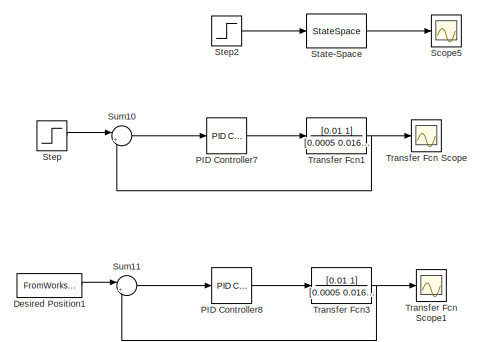
[diagram: root canvas - part 1/9, top left region]
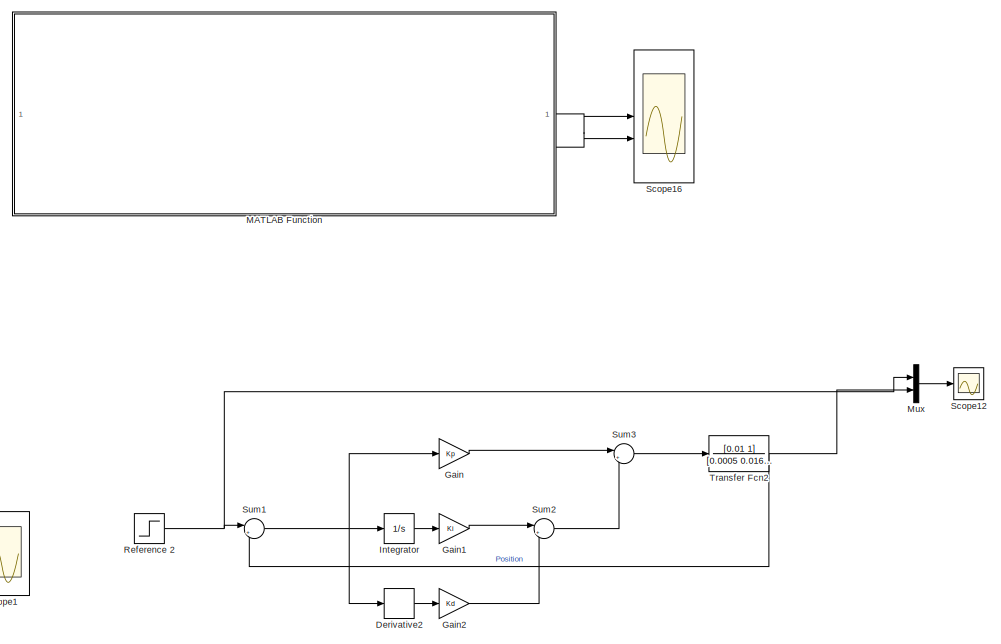
[diagram: root canvas - part 2/9, top right region]
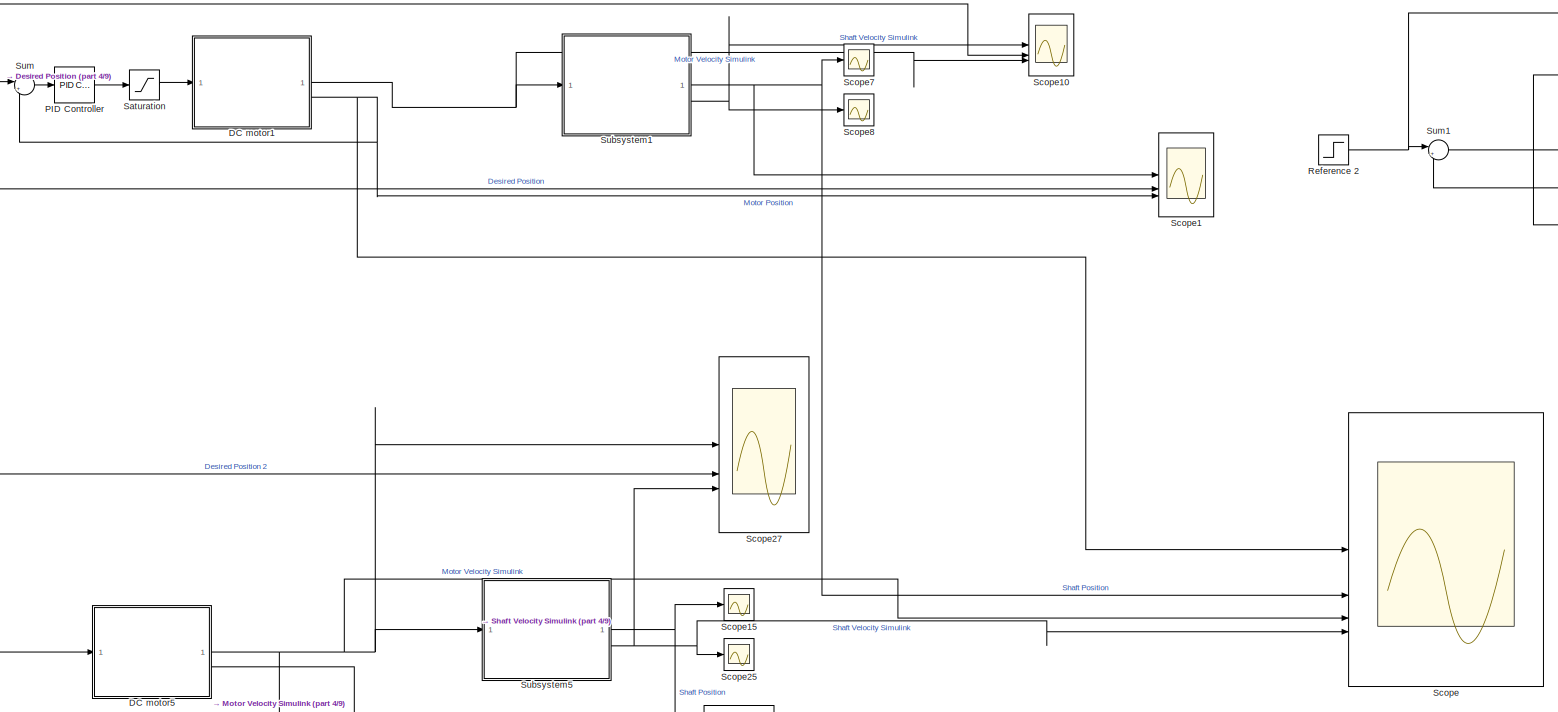
[diagram: root canvas - part 3/9, top center region]
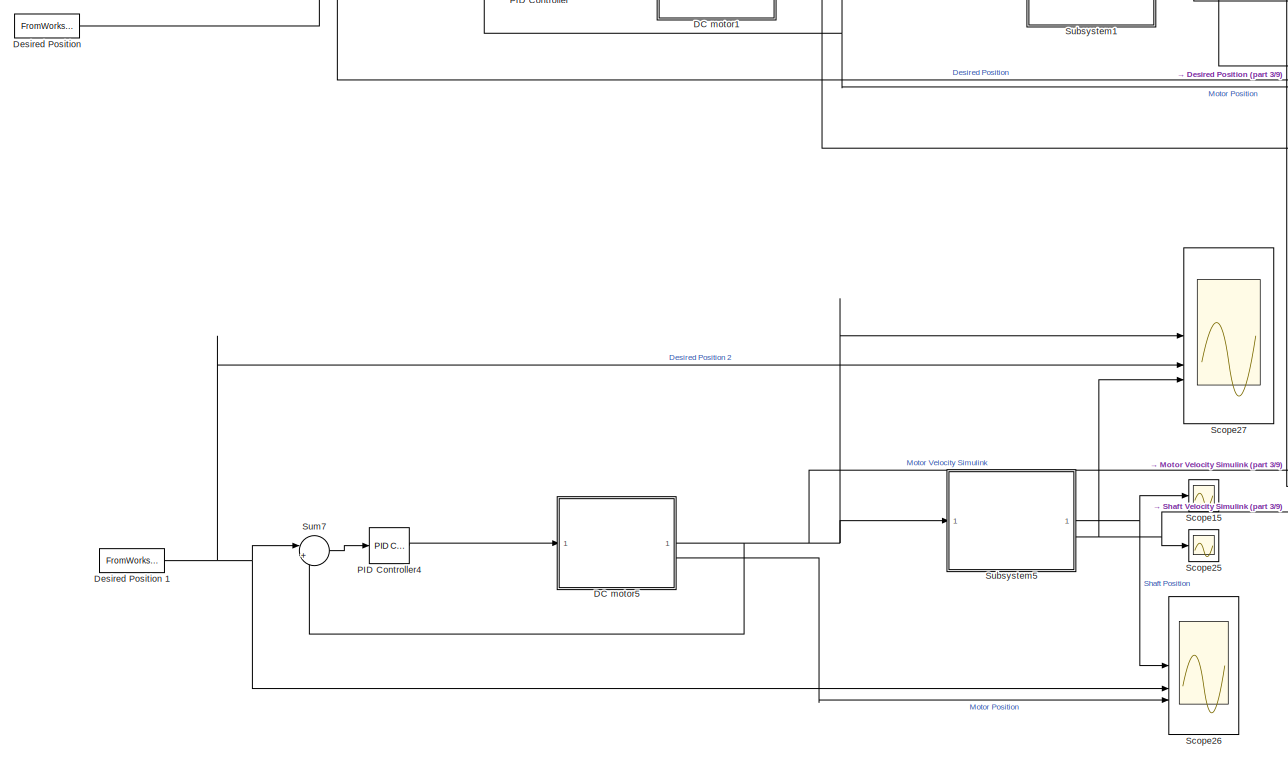
[diagram: root canvas - part 4/9, top left region]
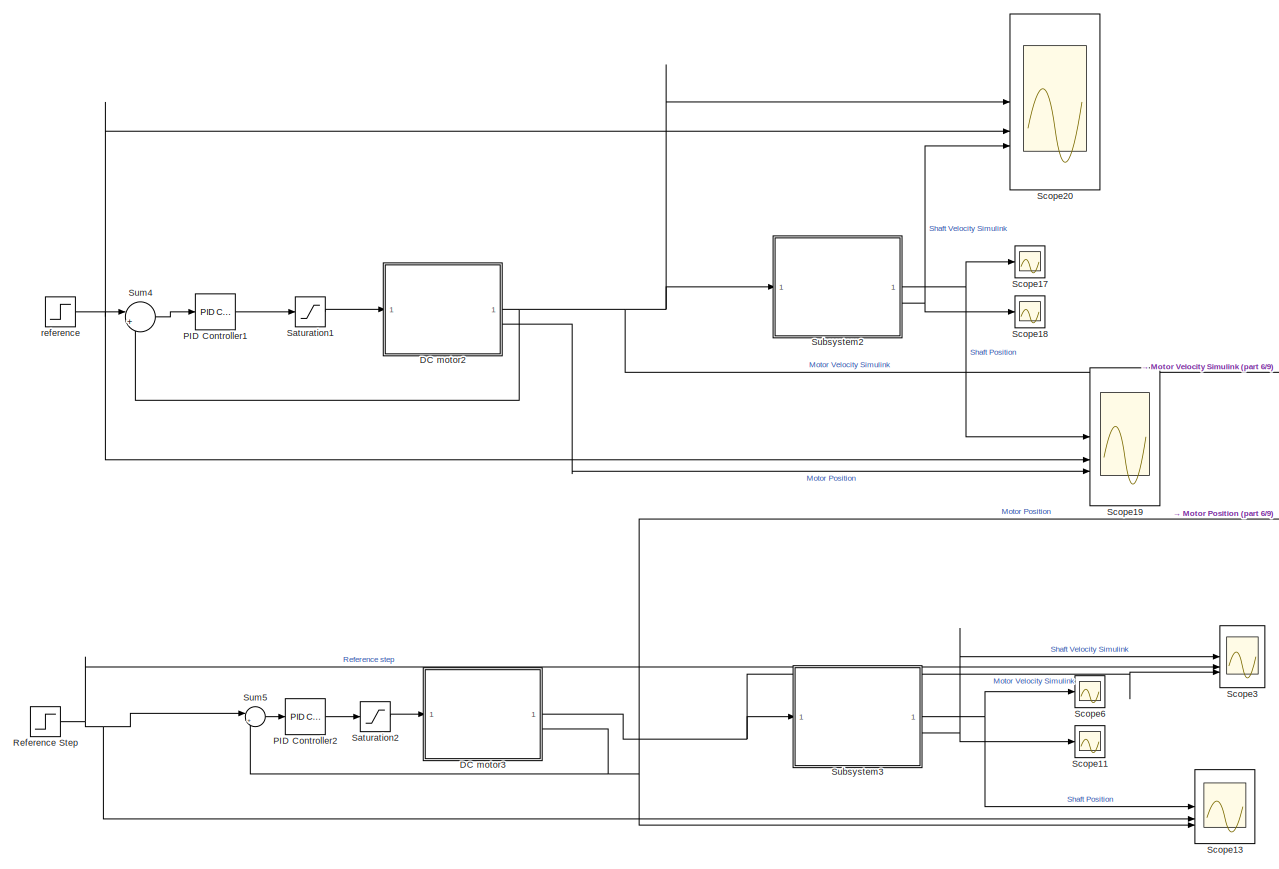
[diagram: root canvas - part 5/9, middle left region]
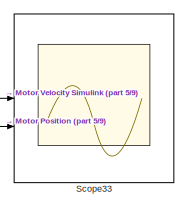
[diagram: root canvas - part 6/9, middle right region]
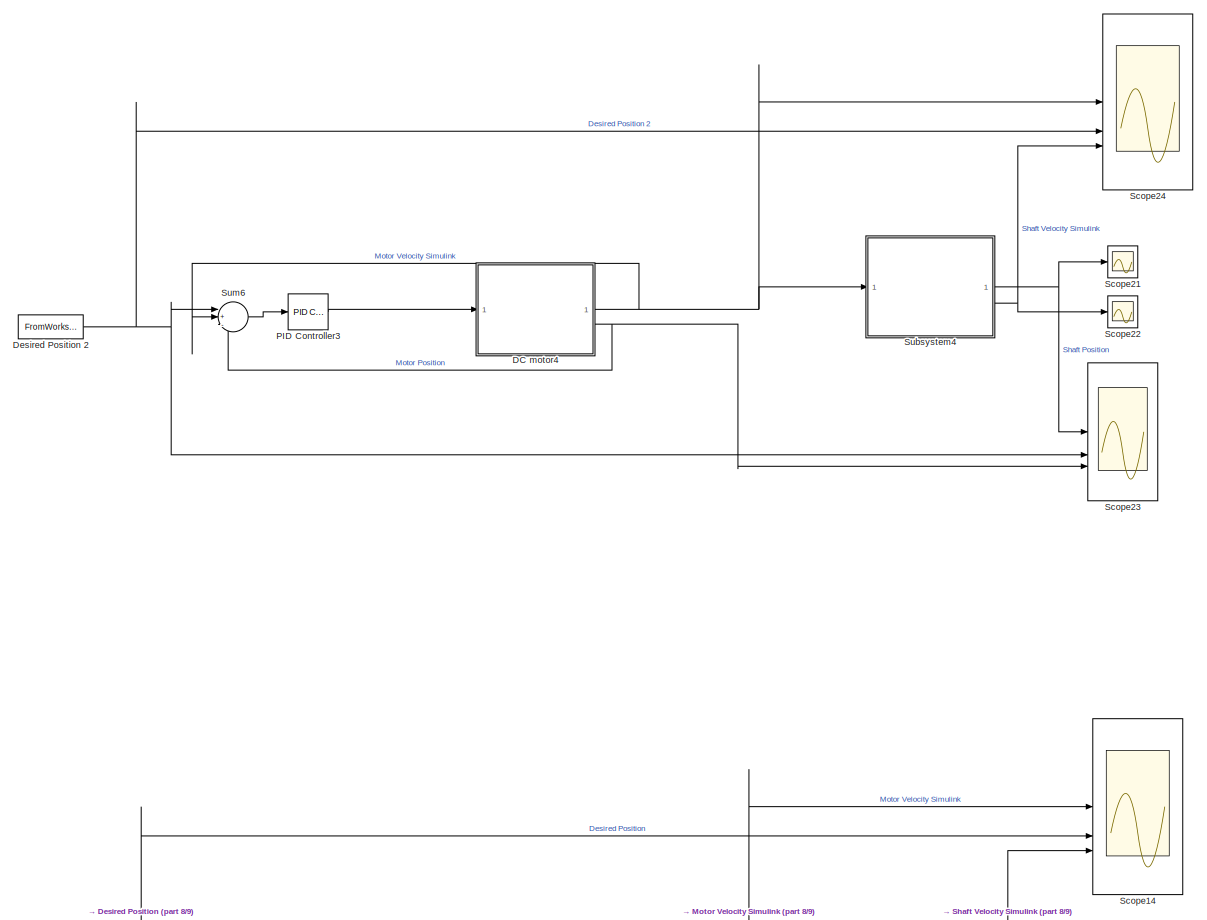
[diagram: root canvas - part 7/9, bottom left region]
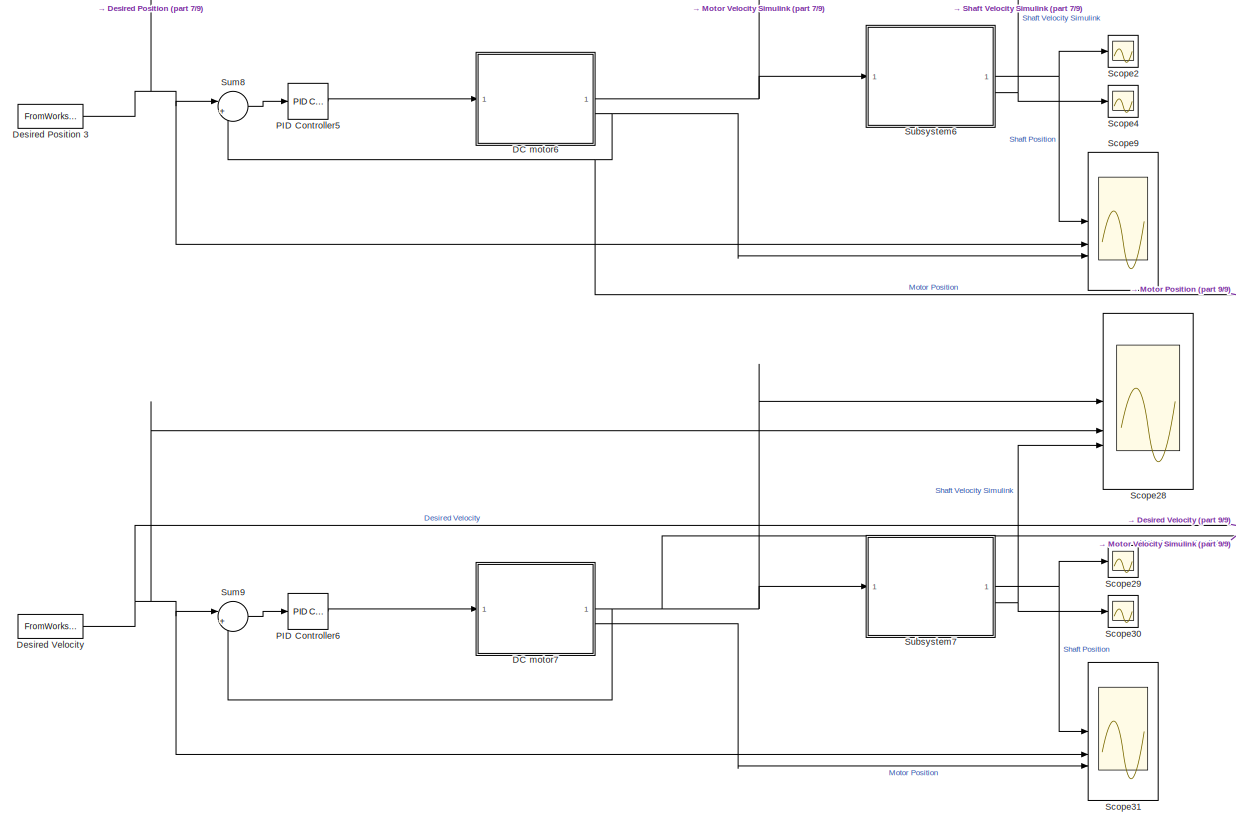
[diagram: root canvas - part 8/9, bottom left region]
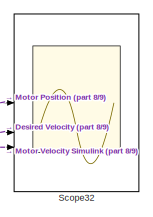
[diagram: root canvas - part 9/9, bottom center region]
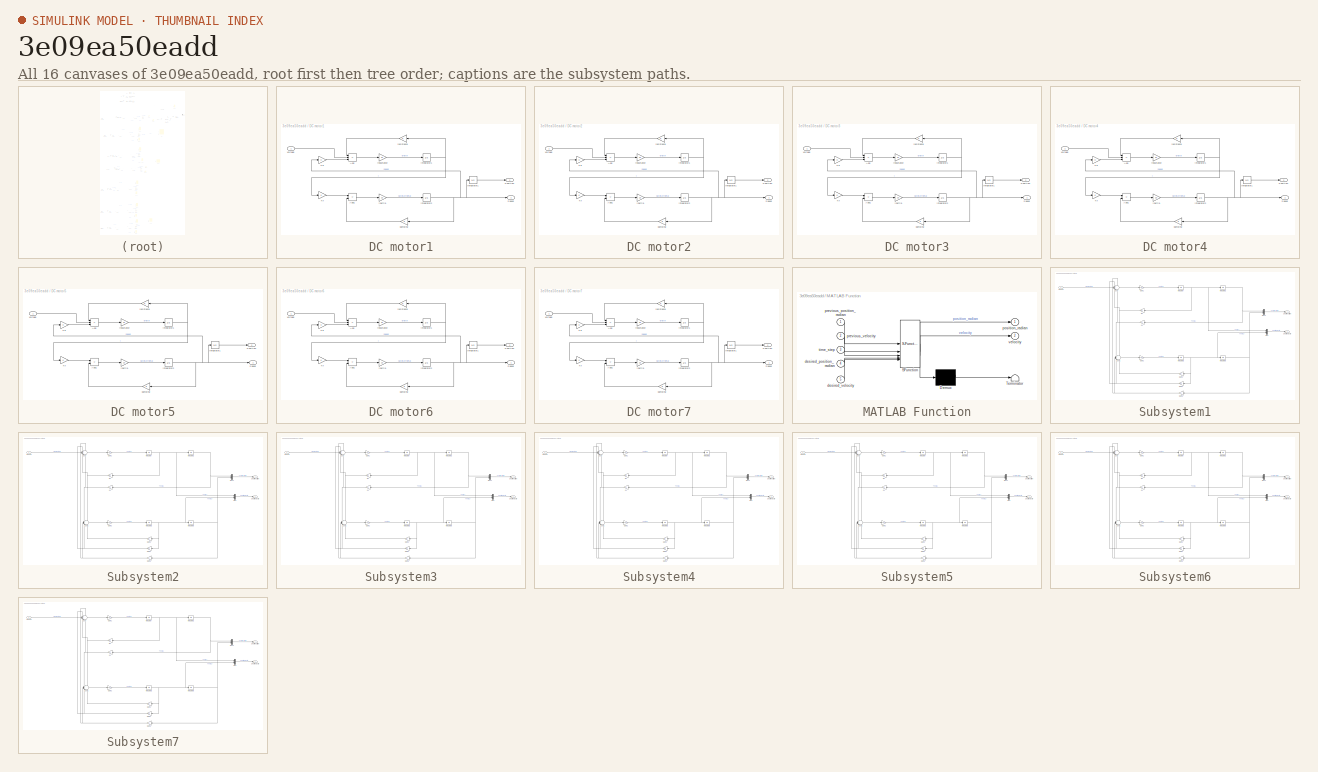
[diagram: thumbnail index - all 16 canvases of the model, root first then tree order]
MODEL slx_3e09ea50eadd
KIND model
CONFIG AbsTol = auto
CONFIG EnableMultiTasking = off
CONFIG FixedStep = auto
CONFIG MaxStep = 1e-2
CONFIG MinStep = auto
CONFIG RelTol = 1e-3
CONFIG SampleTimeConstraint = Unconstrained
CONFIG SolverName = daessc
CONFIG StartTime = 0.0
CONFIG StopTime = 100
BLOCK [SubSystem] DC motor1
BLOCK [Sum] DC motor1/Add
  IconShape = rectangular
  Inputs = -+-
BLOCK [Sum] DC motor1/Add1
  IconShape = rectangular
  Inputs = +-
BLOCK [Integrator] DC motor1/Integrator1
BLOCK [Gain] DC motor1/Ke
  Gain = K
BLOCK [Gain] DC motor1/Kt
  Gain = K
BLOCK [Outport] DC motor1/Position
  Port = 2
BLOCK [Outport] DC motor1/Speed
BLOCK [Gain] DC motor1/damping
  Gain = b
BLOCK [Gain] DC motor1/inductance 
  Gain = 1/L
BLOCK [Gain] DC motor1/inertia
  Gain = 1/J
BLOCK [Integrator] DC motor1/integrator1
BLOCK [Integrator] DC motor1/integrator2
BLOCK [Gain] DC motor1/resistance
  Gain = R
BLOCK [Inport] DC motor1/voltage
BLOCK [SubSystem] DC motor2
BLOCK [Sum] DC motor2/Add
  IconShape = rectangular
  Inputs = -+-
BLOCK [Sum] DC motor2/Add1
  IconShape = rectangular
  Inputs = +-
BLOCK [Integrator] DC motor2/Integrator1
BLOCK [Gain] DC motor2/Ke
  Gain = K
BLOCK [Gain] DC motor2/Kt
  Gain = K
BLOCK [Outport] DC motor2/Position
  Port = 2
BLOCK [Outport] DC motor2/Speed
BLOCK [Gain] DC motor2/damping
  Gain = b
BLOCK [Gain] DC motor2/inductance 
  Gain = 1/L
BLOCK [Gain] DC motor2/inertia
  Gain = 1/J
BLOCK [Integrator] DC motor2/integrator1
BLOCK [Integrator] DC motor2/integrator2
BLOCK [Gain] DC motor2/resistance
  Gain = R
BLOCK [Inport] DC motor2/voltage
BLOCK [SubSystem] DC motor3
BLOCK [Sum] DC motor3/Add
  IconShape = rectangular
  Inputs = -+-
BLOCK [Sum] DC motor3/Add1
  IconShape = rectangular
  Inputs = +-
BLOCK [Integrator] DC motor3/Integrator1
BLOCK [Gain] DC motor3/Ke
  Gain = K
BLOCK [Gain] DC motor3/Kt
  Gain = K
BLOCK [Outport] DC motor3/Position
  Port = 2
BLOCK [Outport] DC motor3/Speed
BLOCK [Gain] DC motor3/damping
  Gain = b
BLOCK [Gain] DC motor3/inductance 
  Gain = 1/L
BLOCK [Gain] DC motor3/inertia
  Gain = 1/J
BLOCK [Integrator] DC motor3/integrator1
BLOCK [Integrator] DC motor3/integrator2
BLOCK [Gain] DC motor3/resistance
  Gain = R
BLOCK [Inport] DC motor3/voltage
BLOCK [SubSystem] DC motor4
BLOCK [Sum] DC motor4/Add
  IconShape = rectangular
  Inputs = -+-
BLOCK [Sum] DC motor4/Add1
  IconShape = rectangular
  Inputs = +-
BLOCK [Integrator] DC motor4/Integrator1
BLOCK [Gain] DC motor4/Ke
  Gain = K
BLOCK [Gain] DC motor4/Kt
  Gain = K
BLOCK [Outport] DC motor4/Position
  Port = 2
BLOCK [Outport] DC motor4/Speed
BLOCK [Gain] DC motor4/damping
  Gain = b
BLOCK [Gain] DC motor4/inductance 
  Gain = 1/L
BLOCK [Gain] DC motor4/inertia
  Gain = 1/J
BLOCK [Integrator] DC motor4/integrator1
BLOCK [Integrator] DC motor4/integrator2
BLOCK [Gain] DC motor4/resistance
  Gain = R
BLOCK [Inport] DC motor4/voltage
BLOCK [SubSystem] DC motor5
BLOCK [Sum] DC motor5/Add
  IconShape = rectangular
  Inputs = -+-
BLOCK [Sum] DC motor5/Add1
  IconShape = rectangular
  Inputs = +-
BLOCK [Integrator] DC motor5/Integrator1
BLOCK [Gain] DC motor5/Ke
  Gain = K
BLOCK [Gain] DC motor5/Kt
  Gain = K
BLOCK [Outport] DC motor5/Position
  Port = 2
BLOCK [Outport] DC motor5/Speed
BLOCK [Gain] DC motor5/damping
  Gain = b
BLOCK [Gain] DC motor5/inductance 
  Gain = 1/L
BLOCK [Gain] DC motor5/inertia
  Gain = 1/J
BLOCK [Integrator] DC motor5/integrator1
BLOCK [Integrator] DC motor5/integrator2
BLOCK [Gain] DC motor5/resistance
  Gain = R
BLOCK [Inport] DC motor5/voltage
BLOCK [SubSystem] DC motor6
BLOCK [Sum] DC motor6/Add
  IconShape = rectangular
  Inputs = -+-
BLOCK [Sum] DC motor6/Add1
  IconShape = rectangular
  Inputs = +-
BLOCK [Integrator] DC motor6/Integrator1
BLOCK [Gain] DC motor6/Ke
  Gain = K
BLOCK [Gain] DC motor6/Kt
  Gain = K
BLOCK [Outport] DC motor6/Position
  Port = 2
BLOCK [Outport] DC motor6/Speed
BLOCK [Gain] DC motor6/damping
  Gain = b
BLOCK [Gain] DC motor6/inductance 
  Gain = 1/L
BLOCK [Gain] DC motor6/inertia
  Gain = 1/J
BLOCK [Integrator] DC motor6/integrator1
BLOCK [Integrator] DC motor6/integrator2
BLOCK [Gain] DC motor6/resistance
  Gain = R
BLOCK [Inport] DC motor6/voltage
BLOCK [SubSystem] DC motor7
BLOCK [Sum] DC motor7/Add
  IconShape = rectangular
  Inputs = -+-
BLOCK [Sum] DC motor7/Add1
  IconShape = rectangular
  Inputs = +-
BLOCK [Integrator] DC motor7/Integrator1
BLOCK [Gain] DC motor7/Ke
  Gain = K
BLOCK [Gain] DC motor7/Kt
  Gain = K
BLOCK [Outport] DC motor7/Position
  Port = 2
BLOCK [Outport] DC motor7/Speed
BLOCK [Gain] DC motor7/damping
  Gain = b
BLOCK [Gain] DC motor7/inductance 
  Gain = 1/L
BLOCK [Gain] DC motor7/inertia
  Gain = 1/J
BLOCK [Integrator] DC motor7/integrator1
BLOCK [Integrator] DC motor7/integrator2
BLOCK [Gain] DC motor7/resistance
  Gain = R
BLOCK [Inport] DC motor7/voltage
BLOCK [Derivative] Derivative2
BLOCK [FromWorkspace] Desired Position
  VariableName = position_time_matrix
BLOCK [FromWorkspace] Desired Position 1
  VariableName = position_time_matrix
BLOCK [FromWorkspace] Desired Position 2
  VariableName = position_time_matrix
BLOCK [FromWorkspace] Desired Position 3
  VariableName = position_time_matrix
BLOCK [FromWorkspace] Desired Position1
  VariableName = position_time_matrix
BLOCK [FromWorkspace] Desired Velocity
  VariableName = position_time_matrix
BLOCK [Gain] Gain
  Gain = Kp
BLOCK [Gain] Gain1
  Gain = Ki
BLOCK [Gain] Gain2
  Gain = Kd
BLOCK [Integrator] Integrator
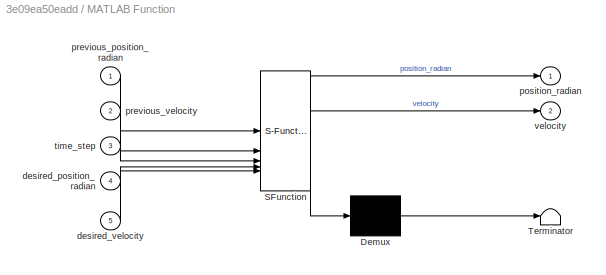
BLOCK [SubSystem] MATLAB Function
  Commented = on
  ErrorFcn = Stateflow.Translate.translate
  LibrarySourceBlock = simulink/User-Defined\nFunctions/MATLAB Function
  PermitHierarchicalResolution = ExplicitOnly
  SFBlockType = MATLAB Function
  TreatAsAtomicUnit = on
BLOCK [Demux] MATLAB Function/ Demux 
  Outputs = 1
BLOCK [S-Function] MATLAB Function/ SFunction 
  EnableBusSupport = on
  FunctionName = sf_sfun
  PortCounts = [5 3]
  SFcnIsStateOwnerBlock = off
  SFunctionDeploymentMode = off
  Tag = Stateflow S-Function 2
BLOCK [Terminator] MATLAB Function/ Terminator 
BLOCK [Inport] MATLAB Function/desired_position_radian
  Port = 4
BLOCK [Inport] MATLAB Function/desired_velocity
  Port = 5
BLOCK [Outport] MATLAB Function/position_radian
BLOCK [Inport] MATLAB Function/previous_position_radian
BLOCK [Inport] MATLAB Function/previous_velocity
  Port = 2
BLOCK [Inport] MATLAB Function/time_step
  Port = 3
BLOCK [Outport] MATLAB Function/velocity
  Port = 2
BLOCK [Mux] Mux
  DisplayOption = bar
  Inputs = 2
BLOCK [Reference] PID Controller  REF=slpidlib/PID Controller
  LibrarySourceBlock = simulink/Continuous/PID Controller
  SourceBlock = slpidlib/PID Controller
  SourceType = PID 1dof
BLOCK [Reference] PID Controller1  REF=slpidlib/PID Controller
  LibrarySourceBlock = simulink/Continuous/PID Controller
  SourceBlock = slpidlib/PID Controller
  SourceType = PID 1dof
BLOCK [Reference] PID Controller2  REF=slpidlib/PID Controller
  LibrarySourceBlock = simulink/Continuous/PID Controller
  SourceBlock = slpidlib/PID Controller
  SourceType = PID 1dof
BLOCK [Reference] PID Controller3  REF=slpidlib/PID Controller
  LibrarySourceBlock = simulink/Continuous/PID Controller
  SourceBlock = slpidlib/PID Controller
  SourceType = PID 1dof
BLOCK [Reference] PID Controller4  REF=slpidlib/PID Controller
  LibrarySourceBlock = simulink/Continuous/PID Controller
  SourceBlock = slpidlib/PID Controller
  SourceType = PID 1dof
BLOCK [Reference] PID Controller5  REF=slpidlib/PID Controller
  LibrarySourceBlock = simulink/Continuous/PID Controller
  SourceBlock = slpidlib/PID Controller
  SourceType = PID 1dof
BLOCK [Reference] PID Controller6  REF=slpidlib/PID Controller
  LibrarySourceBlock = simulink/Continuous/PID Controller
  SourceBlock = slpidlib/PID Controller
  SourceType = PID 1dof
BLOCK [Reference] PID Controller7  REF=slpidlib/PID Controller
  LibrarySourceBlock = simulink/Continuous/PID Controller
  SourceBlock = slpidlib/PID Controller
  SourceType = PID 1dof
BLOCK [Reference] PID Controller8  REF=slpidlib/PID Controller
  LibrarySourceBlock = simulink/Continuous/PID Controller
  SourceBlock = slpidlib/PID Controller
  SourceType = PID 1dof
BLOCK [Step] Reference 2
  SampleTime = 0
BLOCK [Step] Reference Step
  After = 5
  SampleTime = 0
BLOCK [Saturate] Saturation
  LowerLimit = -50
  UpperLimit = 50
BLOCK [Saturate] Saturation1
  LowerLimit = -100000
  UpperLimit = 100000
BLOCK [Saturate] Saturation2
  LowerLimit = -100000
  UpperLimit = 100000
BLOCK [Scope] Scope
  Floating = off
  NumInputPorts = 4
  ScopeSpecificationString = Simulink.scopes.TimeScopeBlockCfg('CurrentConfiguration', extmgr.ConfigurationSet(extmgr.Configuration('Core','General UI',true),extmgr.Configuration('Core','Source UI',true),extmgr.Configuration('Sources','WiredSimulink',true,'DataLoggingVariableName','ScopeData5'),extmgr.Configuration('Visuals','Time Domain',true,'SerializedDisplays',{struct('MinYLimReal','-3.63178','MaxYLimReal','49.80574','YLa...<+1566ch>
BLOCK [Scope] Scope1
  Floating = off
  NumInputPorts = 3
  ScopeSpecificationString = Simulink.scopes.TimeScopeBlockCfg('CurrentConfiguration', extmgr.ConfigurationSet(extmgr.Configuration('Core','General UI',true),extmgr.Configuration('Core','Source UI',true),extmgr.Configuration('Sources','WiredSimulink',true,'DataLoggingVariableName','ScopeData6'),extmgr.Configuration('Visuals','Time Domain',true,'SerializedDisplays',{struct('MinYLimReal','-48.21583','MaxYLimReal','64.14187','YL...<+1464ch>
BLOCK [Scope] Scope10
  Floating = off
  NumInputPorts = 3
  ScopeSpecificationString = Simulink.scopes.TimeScopeBlockCfg('CurrentConfiguration', extmgr.ConfigurationSet(extmgr.Configuration('Core','General UI',true),extmgr.Configuration('Core','Source UI',true),extmgr.Configuration('Sources','WiredSimulink',true,'DataLoggingVariableName','ScopeData1'),extmgr.Configuration('Visuals','Time Domain',true,'SerializedDisplays',{struct('MinYLimReal','-28.73493','MaxYLimReal','58.72698','YL...<+1701ch>
BLOCK [Scope] Scope11
  Floating = off
  NameLocation = top
  NumInputPorts = 1
  ScopeSpecificationString = Simulink.scopes.TimeScopeBlockCfg('CurrentConfiguration', extmgr.ConfigurationSet(extmgr.Configuration('Core','General UI',true),extmgr.Configuration('Core','Source UI',true),extmgr.Configuration('Sources','WiredSimulink',true,'DataLoggingVariableName','ScopeData1'),extmgr.Configuration('Visuals','Time Domain',true,'SerializedDisplays',{struct('MinYLimReal','-0.1869','MaxYLimReal','1.2015','YLabel...<+1454ch>
BLOCK [Scope] Scope12
  Floating = off
  NumInputPorts = 1
  ScopeSpecificationString = Simulink.scopes.TimeScopeBlockCfg('CurrentConfiguration', extmgr.ConfigurationSet(extmgr.Configuration('Core','General UI',true),extmgr.Configuration('Core','Source UI',true),extmgr.Configuration('Sources','WiredSimulink',true,'DataLoggingVariableName','ScopeData3'),extmgr.Configuration('Visuals','Time Domain',true,'SerializedDisplays',{struct('MinYLimReal','-0.125','MaxYLimReal','1.125','YLabelRe...<+1369ch>
BLOCK [Scope] Scope13
  Floating = off
  NumInputPorts = 3
  ScopeSpecificationString = Simulink.scopes.TimeScopeBlockCfg('CurrentConfiguration', extmgr.ConfigurationSet(extmgr.Configuration('Core','General UI',true),extmgr.Configuration('Core','Source UI',true),extmgr.Configuration('Sources','WiredSimulink',true,'DataLoggingVariableName','ScopeData2'),extmgr.Configuration('Visuals','Time Domain',true,'SerializedDisplays',{struct('MinYLimReal','-31.74458','MaxYLimReal','51.3213','YLa...<+1529ch>
BLOCK [Scope] Scope14
  Floating = off
  NumInputPorts = 3
  ScopeSpecificationString = Simulink.scopes.TimeScopeBlockCfg('CurrentConfiguration', extmgr.ConfigurationSet(extmgr.Configuration('Core','General UI',true),extmgr.Configuration('Core','Source UI',true),extmgr.Configuration('Sources','WiredSimulink',true,'DataLoggingVariableName','ScopeData1'),extmgr.Configuration('Visuals','Time Domain',true,'SerializedDisplays',{struct('MinYLimReal','-19.99744','MaxYLimReal','49.99972','YL...<+1508ch>
BLOCK [Scope] Scope15
  Floating = off
  NumInputPorts = 1
  ScopeSpecificationString = Simulink.scopes.TimeScopeBlockCfg('CurrentConfiguration', extmgr.ConfigurationSet(extmgr.Configuration('Core','General UI',true),extmgr.Configuration('Core','Source UI',true),extmgr.Configuration('Sources','WiredSimulink',true,'DataLoggingVariableName','ScopeData1'),extmgr.Configuration('Visuals','Time Domain',true,'SerializedDisplays',{struct('MinYLimReal','-25.58747','MaxYLimReal','54.70781','YL...<+1400ch>
BLOCK [Scope] Scope16
  Floating = off
  NumInputPorts = 2
  ScopeSpecificationString = Simulink.scopes.TimeScopeBlockCfg('CurrentConfiguration', extmgr.ConfigurationSet(extmgr.Configuration('Core','General UI',true),extmgr.Configuration('Core','Source UI',true),extmgr.Configuration('Sources','WiredSimulink',true,'DataLoggingVariableName','ScopeData7'),extmgr.Configuration('Visuals','Time Domain',true,'SerializedDisplays',{struct('MinYLimReal','-0.43916','MaxYLimReal','6.26731','YLab...<+1461ch>
BLOCK [Scope] Scope17
  Floating = off
  NumInputPorts = 1
  ScopeSpecificationString = Simulink.scopes.TimeScopeBlockCfg('CurrentConfiguration', extmgr.ConfigurationSet(extmgr.Configuration('Core','General UI',true),extmgr.Configuration('Core','Source UI',true),extmgr.Configuration('Sources','WiredSimulink',true,'DataLoggingVariableName','ScopeData8'),extmgr.Configuration('Visuals','Time Domain',true,'SerializedDisplays',{struct('MinYLimReal','-0.20456','MaxYLimReal','1.841','YLabel...<+1386ch>
BLOCK [Scope] Scope18
  Floating = off
  NameLocation = top
  NumInputPorts = 1
  ScopeSpecificationString = Simulink.scopes.TimeScopeBlockCfg('CurrentConfiguration', extmgr.ConfigurationSet(extmgr.Configuration('Core','General UI',true),extmgr.Configuration('Core','Source UI',true),extmgr.Configuration('Sources','WiredSimulink',true,'DataLoggingVariableName','ScopeData9'),extmgr.Configuration('Visuals','Time Domain',true,'SerializedDisplays',{struct('MinYLimReal','-0.1869','MaxYLimReal','1.2015','YLabel...<+1454ch>
BLOCK [Scope] Scope19
  Floating = off
  NumInputPorts = 3
  ScopeSpecificationString = Simulink.scopes.TimeScopeBlockCfg('CurrentConfiguration', extmgr.ConfigurationSet(extmgr.Configuration('Core','General UI',true),extmgr.Configuration('Core','Source UI',true),extmgr.Configuration('Sources','WiredSimulink',true,'DataLoggingVariableName','ScopeData10'),extmgr.Configuration('Visuals','Time Domain',true,'SerializedDisplays',{struct('MinYLimReal','-3.73688','MaxYLimReal','9.93543','YLa...<+1469ch>
BLOCK [Scope] Scope2
  Floating = off
  NumInputPorts = 1
  ScopeSpecificationString = Simulink.scopes.TimeScopeBlockCfg('CurrentConfiguration', extmgr.ConfigurationSet(extmgr.Configuration('Core','General UI',true),extmgr.Configuration('Core','Source UI',true),extmgr.Configuration('Sources','WiredSimulink',true,'DataLoggingVariableName','ScopeData2'),extmgr.Configuration('Visuals','Time Domain',true,'SerializedDisplays',{struct('MinYLimReal','-25.58747','MaxYLimReal','54.70781','YL...<+1400ch>
BLOCK [Scope] Scope20
  Floating = off
  NumInputPorts = 3
  ScopeSpecificationString = Simulink.scopes.TimeScopeBlockCfg('CurrentConfiguration', extmgr.ConfigurationSet(extmgr.Configuration('Core','General UI',true),extmgr.Configuration('Core','Source UI',true),extmgr.Configuration('Sources','WiredSimulink',true,'DataLoggingVariableName','ScopeData11'),extmgr.Configuration('Visuals','Time Domain',true,'SerializedDisplays',{struct('MinYLimReal','3.13708','MaxYLimReal','5.23054','YLab...<+1517ch>
BLOCK [Scope] Scope21
  Floating = off
  NumInputPorts = 1
  ScopeSpecificationString = Simulink.scopes.TimeScopeBlockCfg('CurrentConfiguration', extmgr.ConfigurationSet(extmgr.Configuration('Core','General UI',true),extmgr.Configuration('Core','Source UI',true),extmgr.Configuration('Sources','WiredSimulink',true,'DataLoggingVariableName','ScopeData8'),extmgr.Configuration('Visuals','Time Domain',true,'SerializedDisplays',{struct('MinYLimReal','-25.58747','MaxYLimReal','54.70781','YL...<+1400ch>
BLOCK [Scope] Scope22
  Floating = off
  NameLocation = top
  NumInputPorts = 1
  ScopeSpecificationString = Simulink.scopes.TimeScopeBlockCfg('CurrentConfiguration', extmgr.ConfigurationSet(extmgr.Configuration('Core','General UI',true),extmgr.Configuration('Core','Source UI',true),extmgr.Configuration('Sources','WiredSimulink',true,'DataLoggingVariableName','ScopeData9'),extmgr.Configuration('Visuals','Time Domain',true,'SerializedDisplays',{struct('MinYLimReal','-0.1869','MaxYLimReal','1.2015','YLabel...<+1454ch>
BLOCK [Scope] Scope23
  Floating = off
  NumInputPorts = 3
  ScopeSpecificationString = Simulink.scopes.TimeScopeBlockCfg('CurrentConfiguration', extmgr.ConfigurationSet(extmgr.Configuration('Core','General UI',true),extmgr.Configuration('Core','Source UI',true),extmgr.Configuration('Sources','WiredSimulink',true,'DataLoggingVariableName','ScopeData10'),extmgr.Configuration('Visuals','Time Domain',true,'SerializedDisplays',{struct('MinYLimReal','-19.99999','MaxYLimReal','50.00000','Y...<+1513ch>
BLOCK [Scope] Scope24
  Floating = off
  NumInputPorts = 3
  ScopeSpecificationString = Simulink.scopes.TimeScopeBlockCfg('CurrentConfiguration', extmgr.ConfigurationSet(extmgr.Configuration('Core','General UI',true),extmgr.Configuration('Core','Source UI',true),extmgr.Configuration('Sources','WiredSimulink',true,'DataLoggingVariableName','ScopeData11'),extmgr.Configuration('Visuals','Time Domain',true,'SerializedDisplays',{struct('MinYLimReal','-19.99744','MaxYLimReal','49.99972','Y...<+1509ch>
BLOCK [Scope] Scope25
  Floating = off
  NameLocation = top
  NumInputPorts = 1
  ScopeSpecificationString = Simulink.scopes.TimeScopeBlockCfg('CurrentConfiguration', extmgr.ConfigurationSet(extmgr.Configuration('Core','General UI',true),extmgr.Configuration('Core','Source UI',true),extmgr.Configuration('Sources','WiredSimulink',true,'DataLoggingVariableName','ScopeData2'),extmgr.Configuration('Visuals','Time Domain',true,'SerializedDisplays',{struct('MinYLimReal','-0.1869','MaxYLimReal','1.2015','YLabel...<+1454ch>
BLOCK [Scope] Scope26
  Floating = off
  NumInputPorts = 3
  ScopeSpecificationString = Simulink.scopes.TimeScopeBlockCfg('CurrentConfiguration', extmgr.ConfigurationSet(extmgr.Configuration('Core','General UI',true),extmgr.Configuration('Core','Source UI',true),extmgr.Configuration('Sources','WiredSimulink',true,'DataLoggingVariableName','ScopeData3'),extmgr.Configuration('Visuals','Time Domain',true,'SerializedDisplays',{struct('MinYLimReal','-19.99999','MaxYLimReal','114.84513','Y...<+1515ch>
BLOCK [Scope] Scope27
  Floating = off
  NumInputPorts = 3
  ScopeSpecificationString = Simulink.scopes.TimeScopeBlockCfg('CurrentConfiguration', extmgr.ConfigurationSet(extmgr.Configuration('Core','General UI',true),extmgr.Configuration('Core','Source UI',true),extmgr.Configuration('Sources','WiredSimulink',true,'DataLoggingVariableName','ScopeData4'),extmgr.Configuration('Visuals','Time Domain',true,'SerializedDisplays',{struct('MinYLimReal','-19.99744','MaxYLimReal','49.99972','YL...<+1534ch>
BLOCK [Scope] Scope28
  Floating = off
  NumInputPorts = 3
  ScopeSpecificationString = Simulink.scopes.TimeScopeBlockCfg('CurrentConfiguration', extmgr.ConfigurationSet(extmgr.Configuration('Core','General UI',true),extmgr.Configuration('Core','Source UI',true),extmgr.Configuration('Sources','WiredSimulink',true,'DataLoggingVariableName','ScopeData5'),extmgr.Configuration('Visuals','Time Domain',true,'SerializedDisplays',{struct('MinYLimReal','-19.99744','MaxYLimReal','49.99972','YL...<+1506ch>
BLOCK [Scope] Scope29
  Floating = off
  NumInputPorts = 1
  ScopeSpecificationString = Simulink.scopes.TimeScopeBlockCfg('CurrentConfiguration', extmgr.ConfigurationSet(extmgr.Configuration('Core','General UI',true),extmgr.Configuration('Core','Source UI',true),extmgr.Configuration('Sources','WiredSimulink',true,'DataLoggingVariableName','ScopeData6'),extmgr.Configuration('Visuals','Time Domain',true,'SerializedDisplays',{struct('MinYLimReal','-25.58747','MaxYLimReal','54.70781','YL...<+1400ch>
BLOCK [Scope] Scope3
  Floating = off
  NumInputPorts = 3
  ScopeSpecificationString = Simulink.scopes.TimeScopeBlockCfg('CurrentConfiguration', extmgr.ConfigurationSet(extmgr.Configuration('Core','General UI',true),extmgr.Configuration('Core','Source UI',true),extmgr.Configuration('Sources','WiredSimulink',true,'DataLoggingVariableName','ScopeData4'),extmgr.Configuration('Visuals','Time Domain',true,'SerializedDisplays',{struct('MinYLimReal','-23.58594','MaxYLimReal','53.28488','YL...<+1724ch>
BLOCK [Scope] Scope30
  Floating = off
  NameLocation = top
  NumInputPorts = 1
  ScopeSpecificationString = Simulink.scopes.TimeScopeBlockCfg('CurrentConfiguration', extmgr.ConfigurationSet(extmgr.Configuration('Core','General UI',true),extmgr.Configuration('Core','Source UI',true),extmgr.Configuration('Sources','WiredSimulink',true,'DataLoggingVariableName','ScopeData7'),extmgr.Configuration('Visuals','Time Domain',true,'SerializedDisplays',{struct('MinYLimReal','-0.1869','MaxYLimReal','1.2015','YLabel...<+1454ch>
BLOCK [Scope] Scope31
  Floating = off
  NumInputPorts = 3
  ScopeSpecificationString = Simulink.scopes.TimeScopeBlockCfg('CurrentConfiguration', extmgr.ConfigurationSet(extmgr.Configuration('Core','General UI',true),extmgr.Configuration('Core','Source UI',true),extmgr.Configuration('Sources','WiredSimulink',true,'DataLoggingVariableName','ScopeData8'),extmgr.Configuration('Visuals','Time Domain',true,'SerializedDisplays',{struct('MinYLimReal','-19.99999','MaxYLimReal','50.00000','YL...<+1512ch>
BLOCK [Scope] Scope32
  Floating = off
  NumInputPorts = 3
  ScopeSpecificationString = Simulink.scopes.TimeScopeBlockCfg('CurrentConfiguration', extmgr.ConfigurationSet(extmgr.Configuration('Core','General UI',true),extmgr.Configuration('Core','Source UI',true),extmgr.Configuration('Sources','WiredSimulink',true,'DataLoggingVariableName','ScopeData9'),extmgr.Configuration('Visuals','Time Domain',true,'SerializedDisplays',{struct('MinYLimReal','-29.8517','MaxYLimReal','57.16708','YLa...<+1467ch>
BLOCK [Scope] Scope33
  Floating = off
  NumInputPorts = 2
  ScopeSpecificationString = Simulink.scopes.TimeScopeBlockCfg('CurrentConfiguration', extmgr.ConfigurationSet(extmgr.Configuration('Core','General UI',true),extmgr.Configuration('Core','Source UI',true),extmgr.Configuration('Sources','WiredSimulink',true,'DataLoggingVariableName','ScopeData10'),extmgr.Configuration('Visuals','Time Domain',true,'SerializedDisplays',{struct('MinYLimReal','-0.66211','MaxYLimReal','5.959','YLabe...<+1416ch>
BLOCK [Scope] Scope4
  Floating = off
  NameLocation = top
  NumInputPorts = 1
  ScopeSpecificationString = Simulink.scopes.TimeScopeBlockCfg('CurrentConfiguration', extmgr.ConfigurationSet(extmgr.Configuration('Core','General UI',true),extmgr.Configuration('Core','Source UI',true),extmgr.Configuration('Sources','WiredSimulink',true,'DataLoggingVariableName','ScopeData3'),extmgr.Configuration('Visuals','Time Domain',true,'SerializedDisplays',{struct('MinYLimReal','-0.1869','MaxYLimReal','1.2015','YLabel...<+1454ch>
BLOCK [Scope] Scope5
  Floating = off
  NumInputPorts = 1
  ScopeSpecificationString = Simulink.scopes.TimeScopeBlockCfg('CurrentConfiguration', extmgr.ConfigurationSet(extmgr.Configuration('Core','General UI',true),extmgr.Configuration('Core','Source UI',true),extmgr.Configuration('Sources','WiredSimulink',true,'DataLoggingVariableName','ScopeData17'),extmgr.Configuration('Visuals','Time Domain',true,'SerializedDisplays',{struct('MinYLimReal','0.05272','MaxYLimReal','19.95422','YLa...<+1444ch>
BLOCK [Scope] Scope6
  Floating = off
  NumInputPorts = 1
  ScopeSpecificationString = Simulink.scopes.TimeScopeBlockCfg('CurrentConfiguration', extmgr.ConfigurationSet(extmgr.Configuration('Core','General UI',true),extmgr.Configuration('Core','Source UI',true),extmgr.Configuration('Sources','WiredSimulink',true,'DataLoggingVariableName','ScopeData6'),extmgr.Configuration('Visuals','Time Domain',true,'SerializedDisplays',{struct('MinYLimReal','-0.20456','MaxYLimReal','1.841','YLabel...<+1386ch>
BLOCK [Scope] Scope7
  Floating = off
  NumInputPorts = 1
  ScopeSpecificationString = Simulink.scopes.TimeScopeBlockCfg('CurrentConfiguration', extmgr.ConfigurationSet(extmgr.Configuration('Core','General UI',true),extmgr.Configuration('Core','Source UI',true),extmgr.Configuration('Sources','WiredSimulink',true,'DataLoggingVariableName','ScopeData15'),extmgr.Configuration('Visuals','Time Domain',true,'SerializedDisplays',{struct('MinYLimReal','-0.20456','MaxYLimReal','1.841','YLabe...<+1387ch>
BLOCK [Scope] Scope8
  Floating = off
  NameLocation = top
  NumInputPorts = 1
  ScopeSpecificationString = Simulink.scopes.TimeScopeBlockCfg('CurrentConfiguration', extmgr.ConfigurationSet(extmgr.Configuration('Core','General UI',true),extmgr.Configuration('Core','Source UI',true),extmgr.Configuration('Sources','WiredSimulink',true,'DataLoggingVariableName','ScopeData16'),extmgr.Configuration('Visuals','Time Domain',true,'SerializedDisplays',{struct('MinYLimReal','-0.1869','MaxYLimReal','1.2015','YLabe...<+1455ch>
BLOCK [Scope] Scope9
  Floating = off
  NumInputPorts = 3
  ScopeSpecificationString = Simulink.scopes.TimeScopeBlockCfg('CurrentConfiguration', extmgr.ConfigurationSet(extmgr.Configuration('Core','General UI',true),extmgr.Configuration('Core','Source UI',true),extmgr.Configuration('Sources','WiredSimulink',true,'DataLoggingVariableName','ScopeData4'),extmgr.Configuration('Visuals','Time Domain',true,'SerializedDisplays',{struct('MinYLimReal','-20.77029','MaxYLimReal','50.49277','YL...<+1510ch>
BLOCK [StateSpace] State-Space
  A = [-32 -1260 -12400 -20020 0; 1 0 0 0 0; 0 1 0 0 0; 0 0 1 0 0; 0 0 0 1 0]
  B = [1; 0; 0; 0; 0]
  C = [0 0 0 20 2000]
  D = [0]
  InitialCondition = [0;0;0;0;0]
BLOCK [Step] Step
  After = 5
  SampleTime = 0
BLOCK [Step] Step2
  After = 5
  SampleTime = 0
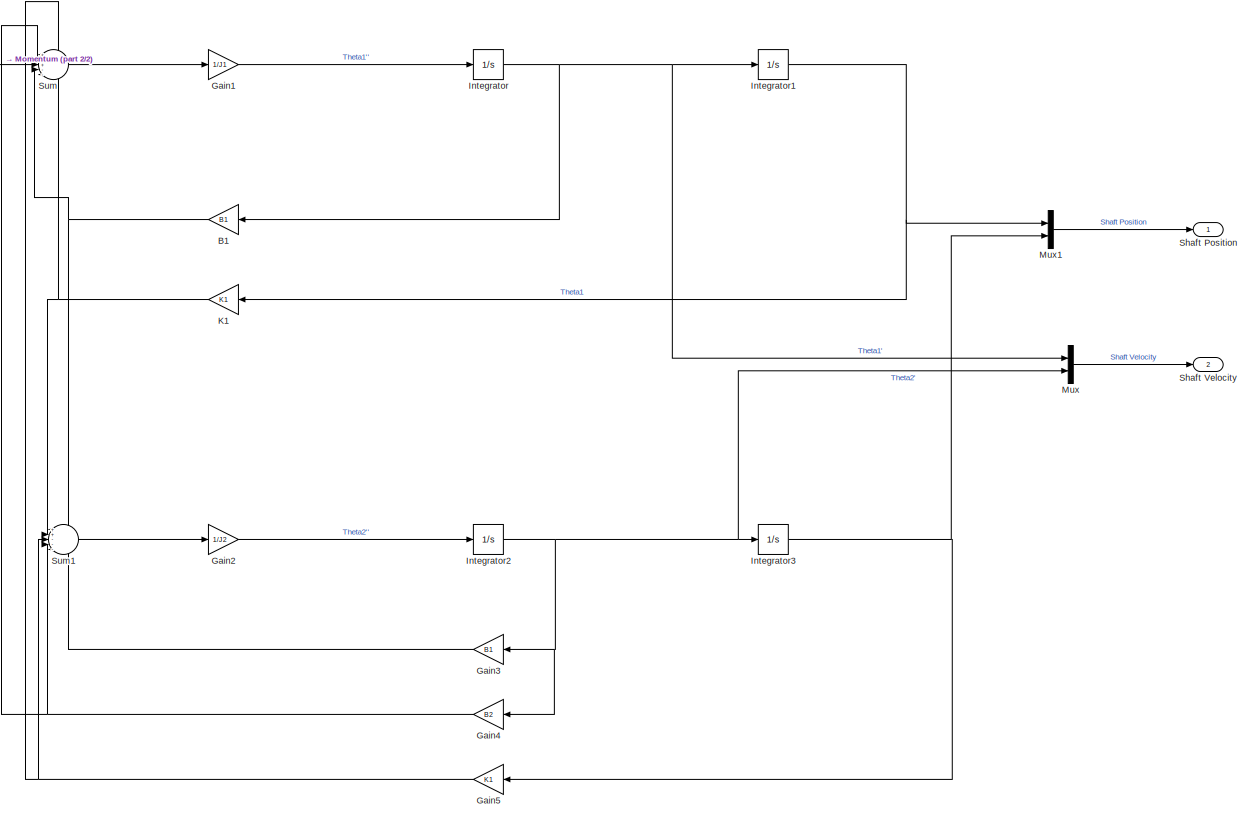
[diagram: Subsystem1 - part 1/2, most of the canvas]
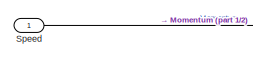
[diagram: Subsystem1 - part 2/2, top left region]
BLOCK [SubSystem] Subsystem1
BLOCK [Gain] Subsystem1/B1
  Gain = B1
BLOCK [Gain] Subsystem1/Gain1
  Gain = 1/J1
BLOCK [Gain] Subsystem1/Gain2
  Gain = 1/J2
BLOCK [Gain] Subsystem1/Gain3
  Gain = B1
BLOCK [Gain] Subsystem1/Gain4
  Gain = B2
BLOCK [Gain] Subsystem1/Gain5
  Gain = K1
BLOCK [Integrator] Subsystem1/Integrator
BLOCK [Integrator] Subsystem1/Integrator1
BLOCK [Integrator] Subsystem1/Integrator2
BLOCK [Integrator] Subsystem1/Integrator3
BLOCK [Gain] Subsystem1/K1
  Gain = K1
BLOCK [Mux] Subsystem1/Mux
  DisplayOption = bar
  Inputs = 2
BLOCK [Mux] Subsystem1/Mux1
  DisplayOption = bar
  Inputs = 2
BLOCK [Outport] Subsystem1/Shaft Position
BLOCK [Outport] Subsystem1/Shaft Velocity
  Port = 2
BLOCK [Inport] Subsystem1/Speed
BLOCK [Sum] Subsystem1/Sum
  Inputs = +++--
BLOCK [Sum] Subsystem1/Sum1
  Inputs = ++---
BLOCK [SubSystem] Subsystem2
BLOCK [Gain] Subsystem2/B1
  Gain = B1
BLOCK [Gain] Subsystem2/Gain1
  Gain = 1/J1
BLOCK [Gain] Subsystem2/Gain2
  Gain = 1/J2
BLOCK [Gain] Subsystem2/Gain3
  Gain = B1
BLOCK [Gain] Subsystem2/Gain4
  Gain = B2
BLOCK [Gain] Subsystem2/Gain5
  Gain = K1
BLOCK [Integrator] Subsystem2/Integrator
BLOCK [Integrator] Subsystem2/Integrator1
BLOCK [Integrator] Subsystem2/Integrator2
BLOCK [Integrator] Subsystem2/Integrator3
BLOCK [Gain] Subsystem2/K1
  Gain = K1
BLOCK [Mux] Subsystem2/Mux
  DisplayOption = bar
  Inputs = 2
BLOCK [Mux] Subsystem2/Mux1
  DisplayOption = bar
  Inputs = 2
BLOCK [Outport] Subsystem2/Shaft Position
BLOCK [Outport] Subsystem2/Shaft Velocity
  Port = 2
BLOCK [Inport] Subsystem2/Speed
BLOCK [Sum] Subsystem2/Sum
  Inputs = +++--
BLOCK [Sum] Subsystem2/Sum1
  Inputs = ++---
BLOCK [SubSystem] Subsystem3
BLOCK [Gain] Subsystem3/B1
  Gain = B1
BLOCK [Gain] Subsystem3/Gain1
  Gain = 1/J1
BLOCK [Gain] Subsystem3/Gain2
  Gain = 1/J2
BLOCK [Gain] Subsystem3/Gain3
  Gain = B1
BLOCK [Gain] Subsystem3/Gain4
  Gain = B2
BLOCK [Gain] Subsystem3/Gain5
  Gain = K1
BLOCK [Integrator] Subsystem3/Integrator
BLOCK [Integrator] Subsystem3/Integrator1
BLOCK [Integrator] Subsystem3/Integrator2
BLOCK [Integrator] Subsystem3/Integrator3
BLOCK [Gain] Subsystem3/K1
  Gain = K1
BLOCK [Mux] Subsystem3/Mux
  DisplayOption = bar
  Inputs = 2
BLOCK [Mux] Subsystem3/Mux1
  DisplayOption = bar
  Inputs = 2
BLOCK [Outport] Subsystem3/Shaft Position
BLOCK [Outport] Subsystem3/Shaft Velocity
  Port = 2
BLOCK [Inport] Subsystem3/Speed
BLOCK [Sum] Subsystem3/Sum
  Inputs = +++--
BLOCK [Sum] Subsystem3/Sum1
  Inputs = ++---
BLOCK [SubSystem] Subsystem4
BLOCK [Gain] Subsystem4/B1
  Gain = B1
BLOCK [Gain] Subsystem4/Gain1
  Gain = 1/J1
BLOCK [Gain] Subsystem4/Gain2
  Gain = 1/J2
BLOCK [Gain] Subsystem4/Gain3
  Gain = B1
BLOCK [Gain] Subsystem4/Gain4
  Gain = B2
BLOCK [Gain] Subsystem4/Gain5
  Gain = K1
BLOCK [Integrator] Subsystem4/Integrator
BLOCK [Integrator] Subsystem4/Integrator1
BLOCK [Integrator] Subsystem4/Integrator2
BLOCK [Integrator] Subsystem4/Integrator3
BLOCK [Gain] Subsystem4/K1
  Gain = K1
BLOCK [Mux] Subsystem4/Mux
  DisplayOption = bar
  Inputs = 2
BLOCK [Mux] Subsystem4/Mux1
  DisplayOption = bar
  Inputs = 2
BLOCK [Outport] Subsystem4/Shaft Position
BLOCK [Outport] Subsystem4/Shaft Velocity
  Port = 2
BLOCK [Inport] Subsystem4/Speed
BLOCK [Sum] Subsystem4/Sum
  Inputs = +++--
BLOCK [Sum] Subsystem4/Sum1
  Inputs = ++---
BLOCK [SubSystem] Subsystem5
BLOCK [Gain] Subsystem5/B1
  Gain = B1
BLOCK [Gain] Subsystem5/Gain1
  Gain = 1/J1
BLOCK [Gain] Subsystem5/Gain2
  Gain = 1/J2
BLOCK [Gain] Subsystem5/Gain3
  Gain = B1
BLOCK [Gain] Subsystem5/Gain4
  Gain = B2
BLOCK [Gain] Subsystem5/Gain5
  Gain = K1
BLOCK [Integrator] Subsystem5/Integrator
BLOCK [Integrator] Subsystem5/Integrator1
BLOCK [Integrator] Subsystem5/Integrator2
BLOCK [Integrator] Subsystem5/Integrator3
BLOCK [Gain] Subsystem5/K1
  Gain = K1
BLOCK [Mux] Subsystem5/Mux
  DisplayOption = bar
  Inputs = 2
BLOCK [Mux] Subsystem5/Mux1
  DisplayOption = bar
  Inputs = 2
BLOCK [Outport] Subsystem5/Shaft Position
BLOCK [Outport] Subsystem5/Shaft Velocity
  Port = 2
BLOCK [Inport] Subsystem5/Speed
BLOCK [Sum] Subsystem5/Sum
  Inputs = +++--
BLOCK [Sum] Subsystem5/Sum1
  Inputs = ++---
BLOCK [SubSystem] Subsystem6
BLOCK [Gain] Subsystem6/B1
  Gain = B1
BLOCK [Gain] Subsystem6/Gain1
  Gain = 1/J1
BLOCK [Gain] Subsystem6/Gain2
  Gain = 1/J2
BLOCK [Gain] Subsystem6/Gain3
  Gain = B1
BLOCK [Gain] Subsystem6/Gain4
  Gain = B2
BLOCK [Gain] Subsystem6/Gain5
  Gain = K1
BLOCK [Integrator] Subsystem6/Integrator
BLOCK [Integrator] Subsystem6/Integrator1
BLOCK [Integrator] Subsystem6/Integrator2
BLOCK [Integrator] Subsystem6/Integrator3
BLOCK [Gain] Subsystem6/K1
  Gain = K1
BLOCK [Mux] Subsystem6/Mux
  DisplayOption = bar
  Inputs = 2
BLOCK [Mux] Subsystem6/Mux1
  DisplayOption = bar
  Inputs = 2
BLOCK [Outport] Subsystem6/Shaft Position
BLOCK [Outport] Subsystem6/Shaft Velocity
  Port = 2
BLOCK [Inport] Subsystem6/Speed
BLOCK [Sum] Subsystem6/Sum
  Inputs = +++--
BLOCK [Sum] Subsystem6/Sum1
  Inputs = ++---
BLOCK [SubSystem] Subsystem7
BLOCK [Gain] Subsystem7/B1
  Gain = B1
BLOCK [Gain] Subsystem7/Gain1
  Gain = 1/J1
BLOCK [Gain] Subsystem7/Gain2
  Gain = 1/J2
BLOCK [Gain] Subsystem7/Gain3
  Gain = B1
BLOCK [Gain] Subsystem7/Gain4
  Gain = B2
BLOCK [Gain] Subsystem7/Gain5
  Gain = K1
BLOCK [Integrator] Subsystem7/Integrator
BLOCK [Integrator] Subsystem7/Integrator1
BLOCK [Integrator] Subsystem7/Integrator2
BLOCK [Integrator] Subsystem7/Integrator3
BLOCK [Gain] Subsystem7/K1
  Gain = K1
BLOCK [Mux] Subsystem7/Mux
  DisplayOption = bar
  Inputs = 2
BLOCK [Mux] Subsystem7/Mux1
  DisplayOption = bar
  Inputs = 2
BLOCK [Outport] Subsystem7/Shaft Position
BLOCK [Outport] Subsystem7/Shaft Velocity
  Port = 2
BLOCK [Inport] Subsystem7/Speed
BLOCK [Sum] Subsystem7/Sum
  Inputs = +++--
BLOCK [Sum] Subsystem7/Sum1
  Inputs = ++---
BLOCK [Sum] Sum
  Inputs = |+-
BLOCK [Sum] Sum1
  Inputs = |+-
BLOCK [Sum] Sum10
  Inputs = |+-
BLOCK [Sum] Sum11
  Inputs = |+-
BLOCK [Sum] Sum2
  Inputs = |++
BLOCK [Sum] Sum3
  Inputs = |++
BLOCK [Sum] Sum4
  Inputs = |+-
BLOCK [Sum] Sum5
  Inputs = |+-
BLOCK [Sum] Sum6
  Inputs = |+--
BLOCK [Sum] Sum7
  Inputs = |+-
BLOCK [Sum] Sum8
  Inputs = |+-
BLOCK [Sum] Sum9
  Inputs = |+-
BLOCK [Scope] Transfer Fcn Scope
  Floating = off
  NumInputPorts = 1
  ScopeSpecificationString = Simulink.scopes.TimeScopeBlockCfg('CurrentConfiguration', extmgr.ConfigurationSet(extmgr.Configuration('Core','General UI',true),extmgr.Configuration('Core','Source UI',true),extmgr.Configuration('Sources','WiredSimulink',true,'DataLoggingVariableName','ScopeData18'),extmgr.Configuration('Visuals','Time Domain',true,'SerializedDisplays',{struct('MinYLimReal','-0.67699','MaxYLimReal','6.09287','YLa...<+1399ch>
BLOCK [Scope] Transfer Fcn Scope1
  Floating = off
  NumInputPorts = 1
  ScopeSpecificationString = Simulink.scopes.TimeScopeBlockCfg('CurrentConfiguration', extmgr.ConfigurationSet(extmgr.Configuration('Core','General UI',true),extmgr.Configuration('Core','Source UI',true),extmgr.Configuration('Sources','WiredSimulink',true,'DataLoggingVariableName','ScopeData1'),extmgr.Configuration('Visuals','Time Domain',true,'SerializedDisplays',{struct('MinYLimReal','-30.23106','MaxYLimReal','59.80331','YL...<+1406ch>
BLOCK [TransferFcn] Transfer Fcn1
  Denominator = [0.0005 0.016 0.63001 6.2002 10.01 0]
  Numerator = [0.01 1]
BLOCK [TransferFcn] Transfer Fcn2
  Denominator = [0.0005 0.016 0.63001 6.2002 10.01 0]
  Numerator = [0.01 1]
BLOCK [TransferFcn] Transfer Fcn3
  Denominator = [0.0005 0.016 0.63001 6.2002 10.01 0]
  Numerator = [0.01 1]
BLOCK [Step] reference
  After = 5
  SampleTime = 0
LINE DC motor1/Add1:1 -> DC motor1/inertia:1
LINE DC motor1/Add:1 -> DC motor1/inductance :1
LINE DC motor1/Integrator1:1 -> DC motor1/Position:1
LINE DC motor1/Ke:1 -> DC motor1/Add:3
LINE DC motor1/Kt:1 -> DC motor1/Add1:1
LINE DC motor1/damping:1 -> DC motor1/Add1:2
LINE DC motor1/inductance :1 -> DC motor1/integrator1:1
LINE DC motor1/inertia:1 -> DC motor1/integrator2:1
NET DC motor1/integrator1:1 -> DC motor1/Kt:1, DC motor1/resistance:1
NET DC motor1/integrator2:1 -> DC motor1/Integrator1:1, DC motor1/Ke:1, DC motor1/Speed:1, DC motor1/damping:1
LINE DC motor1/resistance:1 -> DC motor1/Add:1
LINE DC motor1/voltage:1 -> DC motor1/Add:2
NET DC motor1:1 -> Scope10:3, Subsystem1:1
NET DC motor1:2 -> Scope1:3, Scope:1, Sum:2
LINE DC motor2/Add1:1 -> DC motor2/inertia:1
LINE DC motor2/Add:1 -> DC motor2/inductance :1
LINE DC motor2/Integrator1:1 -> DC motor2/Position:1
LINE DC motor2/Ke:1 -> DC motor2/Add:3
LINE DC motor2/Kt:1 -> DC motor2/Add1:1
LINE DC motor2/damping:1 -> DC motor2/Add1:2
LINE DC motor2/inductance :1 -> DC motor2/integrator1:1
LINE DC motor2/inertia:1 -> DC motor2/integrator2:1
NET DC motor2/integrator1:1 -> DC motor2/Kt:1, DC motor2/resistance:1
NET DC motor2/integrator2:1 -> DC motor2/Integrator1:1, DC motor2/Ke:1, DC motor2/Speed:1, DC motor2/damping:1
LINE DC motor2/resistance:1 -> DC motor2/Add:1
LINE DC motor2/voltage:1 -> DC motor2/Add:2
NET DC motor2:1 -> Scope20:1, Scope33:1, Subsystem2:1, Sum4:2
LINE DC motor2:2 -> Scope19:3
LINE DC motor3/Add1:1 -> DC motor3/inertia:1
LINE DC motor3/Add:1 -> DC motor3/inductance :1
LINE DC motor3/Integrator1:1 -> DC motor3/Position:1
LINE DC motor3/Ke:1 -> DC motor3/Add:3
LINE DC motor3/Kt:1 -> DC motor3/Add1:1
LINE DC motor3/damping:1 -> DC motor3/Add1:2
LINE DC motor3/inductance :1 -> DC motor3/integrator1:1
LINE DC motor3/inertia:1 -> DC motor3/integrator2:1
NET DC motor3/integrator1:1 -> DC motor3/Kt:1, DC motor3/resistance:1
NET DC motor3/integrator2:1 -> DC motor3/Integrator1:1, DC motor3/Ke:1, DC motor3/Speed:1, DC motor3/damping:1
LINE DC motor3/resistance:1 -> DC motor3/Add:1
LINE DC motor3/voltage:1 -> DC motor3/Add:2
NET DC motor3:1 -> Scope3:3, Subsystem3:1
NET DC motor3:2 -> Scope13:3, Scope33:2, Sum5:2
LINE DC motor4/Add1:1 -> DC motor4/inertia:1
LINE DC motor4/Add:1 -> DC motor4/inductance :1
LINE DC motor4/Integrator1:1 -> DC motor4/Position:1
LINE DC motor4/Ke:1 -> DC motor4/Add:3
LINE DC motor4/Kt:1 -> DC motor4/Add1:1
LINE DC motor4/damping:1 -> DC motor4/Add1:2
LINE DC motor4/inductance :1 -> DC motor4/integrator1:1
LINE DC motor4/inertia:1 -> DC motor4/integrator2:1
NET DC motor4/integrator1:1 -> DC motor4/Kt:1, DC motor4/resistance:1
NET DC motor4/integrator2:1 -> DC motor4/Integrator1:1, DC motor4/Ke:1, DC motor4/Speed:1, DC motor4/damping:1
LINE DC motor4/resistance:1 -> DC motor4/Add:1
LINE DC motor4/voltage:1 -> DC motor4/Add:2
NET DC motor4:1 -> Scope24:1, Subsystem4:1, Sum6:2
NET DC motor4:2 -> Scope23:3, Sum6:3
LINE DC motor5/Add1:1 -> DC motor5/inertia:1
LINE DC motor5/Add:1 -> DC motor5/inductance :1
LINE DC motor5/Integrator1:1 -> DC motor5/Position:1
LINE DC motor5/Ke:1 -> DC motor5/Add:3
LINE DC motor5/Kt:1 -> DC motor5/Add1:1
LINE DC motor5/damping:1 -> DC motor5/Add1:2
LINE DC motor5/inductance :1 -> DC motor5/integrator1:1
LINE DC motor5/inertia:1 -> DC motor5/integrator2:1
NET DC motor5/integrator1:1 -> DC motor5/Kt:1, DC motor5/resistance:1
NET DC motor5/integrator2:1 -> DC motor5/Integrator1:1, DC motor5/Ke:1, DC motor5/Speed:1, DC motor5/damping:1
LINE DC motor5/resistance:1 -> DC motor5/Add:1
LINE DC motor5/voltage:1 -> DC motor5/Add:2
NET DC motor5:1 -> Scope27:1, Scope:3, Subsystem5:1, Sum7:2
LINE DC motor5:2 -> Scope26:3
LINE DC motor6/Add1:1 -> DC motor6/inertia:1
LINE DC motor6/Add:1 -> DC motor6/inductance :1
LINE DC motor6/Integrator1:1 -> DC motor6/Position:1
LINE DC motor6/Ke:1 -> DC motor6/Add:3
LINE DC motor6/Kt:1 -> DC motor6/Add1:1
LINE DC motor6/damping:1 -> DC motor6/Add1:2
LINE DC motor6/inductance :1 -> DC motor6/integrator1:1
LINE DC motor6/inertia:1 -> DC motor6/integrator2:1
NET DC motor6/integrator1:1 -> DC motor6/Kt:1, DC motor6/resistance:1
NET DC motor6/integrator2:1 -> DC motor6/Integrator1:1, DC motor6/Ke:1, DC motor6/Speed:1, DC motor6/damping:1
LINE DC motor6/resistance:1 -> DC motor6/Add:1
LINE DC motor6/voltage:1 -> DC motor6/Add:2
NET DC motor6:1 -> Scope14:1, Subsystem6:1
NET DC motor6:2 -> Scope32:1, Scope9:3, Sum8:2
LINE DC motor7/Add1:1 -> DC motor7/inertia:1
LINE DC motor7/Add:1 -> DC motor7/inductance :1
LINE DC motor7/Integrator1:1 -> DC motor7/Position:1
LINE DC motor7/Ke:1 -> DC motor7/Add:3
LINE DC motor7/Kt:1 -> DC motor7/Add1:1
LINE DC motor7/damping:1 -> DC motor7/Add1:2
LINE DC motor7/inductance :1 -> DC motor7/integrator1:1
LINE DC motor7/inertia:1 -> DC motor7/integrator2:1
NET DC motor7/integrator1:1 -> DC motor7/Kt:1, DC motor7/resistance:1
NET DC motor7/integrator2:1 -> DC motor7/Integrator1:1, DC motor7/Ke:1, DC motor7/Speed:1, DC motor7/damping:1
LINE DC motor7/resistance:1 -> DC motor7/Add:1
LINE DC motor7/voltage:1 -> DC motor7/Add:2
NET DC motor7:1 -> Scope28:1, Scope32:3, Subsystem7:1, Sum9:2
LINE DC motor7:2 -> Scope31:3
LINE Derivative2:1 -> Gain2:1
NET Desired Position 1:1 -> Scope26:2, Scope27:2, Sum7:1
NET Desired Position 2:1 -> Scope23:2, Scope24:2, Sum6:1
NET Desired Position 3:1 -> Scope14:2, Scope9:2, Sum8:1
LINE Desired Position1:1 -> Sum11:1
NET Desired Position:1 -> Scope10:2, Scope1:2, Sum:1
NET Desired Velocity:1 -> Scope28:2, Scope31:2, Scope32:2, Sum9:1
LINE Gain1:1 -> Sum2:1
LINE Gain2:1 -> Sum2:2
LINE Gain:1 -> Sum3:1
LINE Integrator:1 -> Gain1:1
LINE MATLAB Function:1 -> Scope16:1
LINE MATLAB Function:2 -> Scope16:2
LINE Mux:1 -> Scope12:1
LINE PID Controller1:1 -> Saturation1:1
LINE PID Controller2:1 -> Saturation2:1
LINE PID Controller3:1 -> DC motor4:1
LINE PID Controller4:1 -> DC motor5:1
LINE PID Controller5:1 -> DC motor6:1
LINE PID Controller6:1 -> DC motor7:1
LINE PID Controller7:1 -> Transfer Fcn1:1
LINE PID Controller8:1 -> Transfer Fcn3:1
LINE PID Controller:1 -> Saturation:1
NET Reference 2:1 -> Mux:1, Sum1:1
NET Reference Step:1 -> Scope13:2, Scope3:2, Sum5:1
LINE Saturation1:1 -> DC motor2:1
LINE Saturation2:1 -> DC motor3:1
LINE Saturation:1 -> DC motor1:1
LINE State-Space:1 -> Scope5:1
LINE Step2:1 -> State-Space:1
LINE Step:1 -> Sum10:1
NET Subsystem1/B1:1 -> Subsystem1/Sum1:1, Subsystem1/Sum:4
LINE Subsystem1/Gain1:1 -> Subsystem1/Integrator:1
LINE Subsystem1/Gain2:1 -> Subsystem1/Integrator2:1
LINE Subsystem1/Gain3:1 -> Subsystem1/Sum1:5
NET Subsystem1/Gain4:1 -> Subsystem1/Sum1:4, Subsystem1/Sum:2
NET Subsystem1/Gain5:1 -> Subsystem1/Sum1:3, Subsystem1/Sum:1
NET Subsystem1/Integrator1:1 -> Subsystem1/K1:1, Subsystem1/Mux1:1
NET Subsystem1/Integrator2:1 -> Subsystem1/Gain3:1, Subsystem1/Gain4:1, Subsystem1/Integrator3:1, Subsystem1/Mux:2
NET Subsystem1/Integrator3:1 -> Subsystem1/Gain5:1, Subsystem1/Mux1:2
NET Subsystem1/Integrator:1 -> Subsystem1/B1:1, Subsystem1/Integrator1:1, Subsystem1/Mux:1
NET Subsystem1/K1:1 -> Subsystem1/Sum1:2, Subsystem1/Sum:5
LINE Subsystem1/Mux1:1 -> Subsystem1/Shaft Position:1
LINE Subsystem1/Mux:1 -> Subsystem1/Shaft Velocity:1
LINE Subsystem1/Speed:1 -> Subsystem1/Sum:3
LINE Subsystem1/Sum1:1 -> Subsystem1/Gain2:1
LINE Subsystem1/Sum:1 -> Subsystem1/Gain1:1
NET Subsystem1:1 -> Scope1:1, Scope7:1, Scope:2
NET Subsystem1:2 -> Scope10:1, Scope8:1
NET Subsystem2/B1:1 -> Subsystem2/Sum1:1, Subsystem2/Sum:4
LINE Subsystem2/Gain1:1 -> Subsystem2/Integrator:1
LINE Subsystem2/Gain2:1 -> Subsystem2/Integrator2:1
LINE Subsystem2/Gain3:1 -> Subsystem2/Sum1:5
NET Subsystem2/Gain4:1 -> Subsystem2/Sum1:4, Subsystem2/Sum:2
NET Subsystem2/Gain5:1 -> Subsystem2/Sum1:3, Subsystem2/Sum:1
NET Subsystem2/Integrator1:1 -> Subsystem2/K1:1, Subsystem2/Mux1:1
NET Subsystem2/Integrator2:1 -> Subsystem2/Gain3:1, Subsystem2/Gain4:1, Subsystem2/Integrator3:1, Subsystem2/Mux:2
NET Subsystem2/Integrator3:1 -> Subsystem2/Gain5:1, Subsystem2/Mux1:2
NET Subsystem2/Integrator:1 -> Subsystem2/B1:1, Subsystem2/Integrator1:1, Subsystem2/Mux:1
NET Subsystem2/K1:1 -> Subsystem2/Sum1:2, Subsystem2/Sum:5
LINE Subsystem2/Mux1:1 -> Subsystem2/Shaft Position:1
LINE Subsystem2/Mux:1 -> Subsystem2/Shaft Velocity:1
LINE Subsystem2/Speed:1 -> Subsystem2/Sum:3
LINE Subsystem2/Sum1:1 -> Subsystem2/Gain2:1
LINE Subsystem2/Sum:1 -> Subsystem2/Gain1:1
NET Subsystem2:1 -> Scope17:1, Scope19:1
NET Subsystem2:2 -> Scope18:1, Scope20:3
NET Subsystem3/B1:1 -> Subsystem3/Sum1:1, Subsystem3/Sum:4
LINE Subsystem3/Gain1:1 -> Subsystem3/Integrator:1
LINE Subsystem3/Gain2:1 -> Subsystem3/Integrator2:1
LINE Subsystem3/Gain3:1 -> Subsystem3/Sum1:5
NET Subsystem3/Gain4:1 -> Subsystem3/Sum1:4, Subsystem3/Sum:2
NET Subsystem3/Gain5:1 -> Subsystem3/Sum1:3, Subsystem3/Sum:1
NET Subsystem3/Integrator1:1 -> Subsystem3/K1:1, Subsystem3/Mux1:1
NET Subsystem3/Integrator2:1 -> Subsystem3/Gain3:1, Subsystem3/Gain4:1, Subsystem3/Integrator3:1, Subsystem3/Mux:2
NET Subsystem3/Integrator3:1 -> Subsystem3/Gain5:1, Subsystem3/Mux1:2
NET Subsystem3/Integrator:1 -> Subsystem3/B1:1, Subsystem3/Integrator1:1, Subsystem3/Mux:1
NET Subsystem3/K1:1 -> Subsystem3/Sum1:2, Subsystem3/Sum:5
LINE Subsystem3/Mux1:1 -> Subsystem3/Shaft Position:1
LINE Subsystem3/Mux:1 -> Subsystem3/Shaft Velocity:1
LINE Subsystem3/Speed:1 -> Subsystem3/Sum:3
LINE Subsystem3/Sum1:1 -> Subsystem3/Gain2:1
LINE Subsystem3/Sum:1 -> Subsystem3/Gain1:1
NET Subsystem3:1 -> Scope13:1, Scope6:1
NET Subsystem3:2 -> Scope11:1, Scope3:1
NET Subsystem4/B1:1 -> Subsystem4/Sum1:1, Subsystem4/Sum:4
LINE Subsystem4/Gain1:1 -> Subsystem4/Integrator:1
LINE Subsystem4/Gain2:1 -> Subsystem4/Integrator2:1
LINE Subsystem4/Gain3:1 -> Subsystem4/Sum1:5
NET Subsystem4/Gain4:1 -> Subsystem4/Sum1:4, Subsystem4/Sum:2
NET Subsystem4/Gain5:1 -> Subsystem4/Sum1:3, Subsystem4/Sum:1
NET Subsystem4/Integrator1:1 -> Subsystem4/K1:1, Subsystem4/Mux1:1
NET Subsystem4/Integrator2:1 -> Subsystem4/Gain3:1, Subsystem4/Gain4:1, Subsystem4/Integrator3:1, Subsystem4/Mux:2
NET Subsystem4/Integrator3:1 -> Subsystem4/Gain5:1, Subsystem4/Mux1:2
NET Subsystem4/Integrator:1 -> Subsystem4/B1:1, Subsystem4/Integrator1:1, Subsystem4/Mux:1
NET Subsystem4/K1:1 -> Subsystem4/Sum1:2, Subsystem4/Sum:5
LINE Subsystem4/Mux1:1 -> Subsystem4/Shaft Position:1
LINE Subsystem4/Mux:1 -> Subsystem4/Shaft Velocity:1
LINE Subsystem4/Speed:1 -> Subsystem4/Sum:3
LINE Subsystem4/Sum1:1 -> Subsystem4/Gain2:1
LINE Subsystem4/Sum:1 -> Subsystem4/Gain1:1
NET Subsystem4:1 -> Scope21:1, Scope23:1
NET Subsystem4:2 -> Scope22:1, Scope24:3
NET Subsystem5/B1:1 -> Subsystem5/Sum1:1, Subsystem5/Sum:4
LINE Subsystem5/Gain1:1 -> Subsystem5/Integrator:1
LINE Subsystem5/Gain2:1 -> Subsystem5/Integrator2:1
LINE Subsystem5/Gain3:1 -> Subsystem5/Sum1:5
NET Subsystem5/Gain4:1 -> Subsystem5/Sum1:4, Subsystem5/Sum:2
NET Subsystem5/Gain5:1 -> Subsystem5/Sum1:3, Subsystem5/Sum:1
NET Subsystem5/Integrator1:1 -> Subsystem5/K1:1, Subsystem5/Mux1:1
NET Subsystem5/Integrator2:1 -> Subsystem5/Gain3:1, Subsystem5/Gain4:1, Subsystem5/Integrator3:1, Subsystem5/Mux:2
NET Subsystem5/Integrator3:1 -> Subsystem5/Gain5:1, Subsystem5/Mux1:2
NET Subsystem5/Integrator:1 -> Subsystem5/B1:1, Subsystem5/Integrator1:1, Subsystem5/Mux:1
NET Subsystem5/K1:1 -> Subsystem5/Sum1:2, Subsystem5/Sum:5
LINE Subsystem5/Mux1:1 -> Subsystem5/Shaft Position:1
LINE Subsystem5/Mux:1 -> Subsystem5/Shaft Velocity:1
LINE Subsystem5/Speed:1 -> Subsystem5/Sum:3
LINE Subsystem5/Sum1:1 -> Subsystem5/Gain2:1
LINE Subsystem5/Sum:1 -> Subsystem5/Gain1:1
NET Subsystem5:1 -> Scope15:1, Scope26:1
NET Subsystem5:2 -> Scope25:1, Scope27:3, Scope:4
NET Subsystem6/B1:1 -> Subsystem6/Sum1:1, Subsystem6/Sum:4
LINE Subsystem6/Gain1:1 -> Subsystem6/Integrator:1
LINE Subsystem6/Gain2:1 -> Subsystem6/Integrator2:1
LINE Subsystem6/Gain3:1 -> Subsystem6/Sum1:5
NET Subsystem6/Gain4:1 -> Subsystem6/Sum1:4, Subsystem6/Sum:2
NET Subsystem6/Gain5:1 -> Subsystem6/Sum1:3, Subsystem6/Sum:1
NET Subsystem6/Integrator1:1 -> Subsystem6/K1:1, Subsystem6/Mux1:1
NET Subsystem6/Integrator2:1 -> Subsystem6/Gain3:1, Subsystem6/Gain4:1, Subsystem6/Integrator3:1, Subsystem6/Mux:2
NET Subsystem6/Integrator3:1 -> Subsystem6/Gain5:1, Subsystem6/Mux1:2
NET Subsystem6/Integrator:1 -> Subsystem6/B1:1, Subsystem6/Integrator1:1, Subsystem6/Mux:1
NET Subsystem6/K1:1 -> Subsystem6/Sum1:2, Subsystem6/Sum:5
LINE Subsystem6/Mux1:1 -> Subsystem6/Shaft Position:1
LINE Subsystem6/Mux:1 -> Subsystem6/Shaft Velocity:1
LINE Subsystem6/Speed:1 -> Subsystem6/Sum:3
LINE Subsystem6/Sum1:1 -> Subsystem6/Gain2:1
LINE Subsystem6/Sum:1 -> Subsystem6/Gain1:1
NET Subsystem6:1 -> Scope2:1, Scope9:1
NET Subsystem6:2 -> Scope14:3, Scope4:1
NET Subsystem7/B1:1 -> Subsystem7/Sum1:1, Subsystem7/Sum:4
LINE Subsystem7/Gain1:1 -> Subsystem7/Integrator:1
LINE Subsystem7/Gain2:1 -> Subsystem7/Integrator2:1
LINE Subsystem7/Gain3:1 -> Subsystem7/Sum1:5
NET Subsystem7/Gain4:1 -> Subsystem7/Sum1:4, Subsystem7/Sum:2
NET Subsystem7/Gain5:1 -> Subsystem7/Sum1:3, Subsystem7/Sum:1
NET Subsystem7/Integrator1:1 -> Subsystem7/K1:1, Subsystem7/Mux1:1
NET Subsystem7/Integrator2:1 -> Subsystem7/Gain3:1, Subsystem7/Gain4:1, Subsystem7/Integrator3:1, Subsystem7/Mux:2
NET Subsystem7/Integrator3:1 -> Subsystem7/Gain5:1, Subsystem7/Mux1:2
NET Subsystem7/Integrator:1 -> Subsystem7/B1:1, Subsystem7/Integrator1:1, Subsystem7/Mux:1
NET Subsystem7/K1:1 -> Subsystem7/Sum1:2, Subsystem7/Sum:5
LINE Subsystem7/Mux1:1 -> Subsystem7/Shaft Position:1
LINE Subsystem7/Mux:1 -> Subsystem7/Shaft Velocity:1
LINE Subsystem7/Speed:1 -> Subsystem7/Sum:3
LINE Subsystem7/Sum1:1 -> Subsystem7/Gain2:1
LINE Subsystem7/Sum:1 -> Subsystem7/Gain1:1
NET Subsystem7:1 -> Scope29:1, Scope31:1
NET Subsystem7:2 -> Scope28:3, Scope30:1
LINE Sum10:1 -> PID Controller7:1
LINE Sum11:1 -> PID Controller8:1
NET Sum1:1 -> Derivative2:1, Gain:1, Integrator:1
LINE Sum2:1 -> Sum3:2
LINE Sum3:1 -> Transfer Fcn2:1
LINE Sum4:1 -> PID Controller1:1
LINE Sum5:1 -> PID Controller2:1
LINE Sum6:1 -> PID Controller3:1
LINE Sum7:1 -> PID Controller4:1
LINE Sum8:1 -> PID Controller5:1
LINE Sum9:1 -> PID Controller6:1
LINE Sum:1 -> PID Controller:1
NET Transfer Fcn1:1 -> Sum10:2, Transfer Fcn Scope:1
NET Transfer Fcn2:1 -> Mux:2, Sum1:2
NET Transfer Fcn3:1 -> Sum11:2, Transfer Fcn Scope1:1
NET reference:1 -> Scope19:2, Scope20:2, Sum4:1
note: NET lines group one-source signal fan-out (src -> all destinations, sorted); 1:1 wires keep LINE
CHART MATLAB Function states=1 transitions=1
  STATE_LABEL 'eML_blk_kernel()'
  STATE_LABEL 'SCRIPT:\nfunction [position_radian, velocity] = simulate_encoder(previous_position_radian, previous_velocity, time_step, desired_position_radian, desired_velocity)\n    % Simülasyon parametreleri\n    encoder_resolution = 1000; % Kodlayıcı çözünürlüğü (pulse/sayı)\n    max_velocity = 10; % Maksimum hız (rad/s)\n\n    % Pozisyonun radyan cinsinden hesaplanması\n    previous_position_pulse = previous_posit...<+1015ch>'
CHART  states=0 transitions=0
